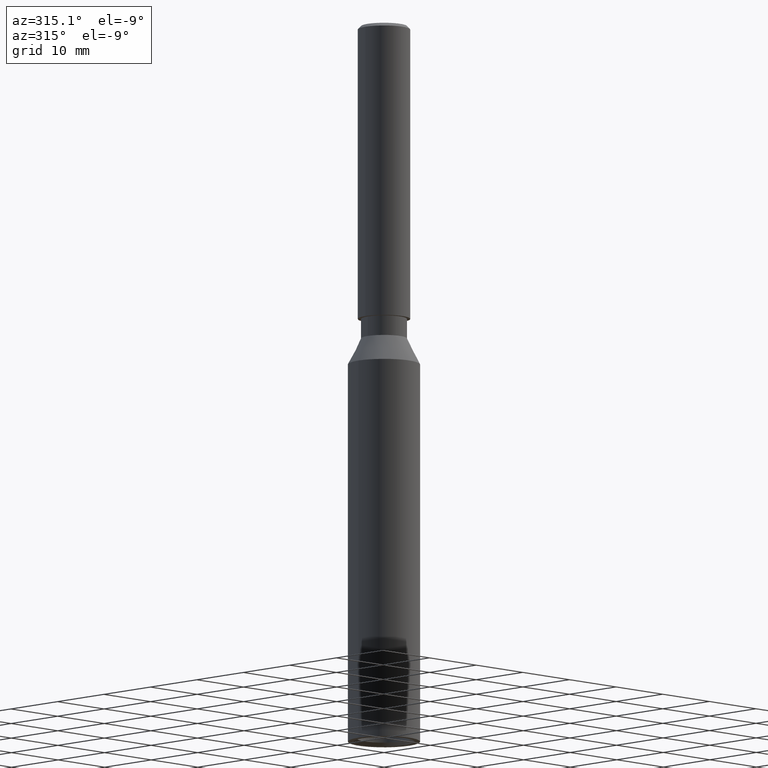
[diagram: clean part render]
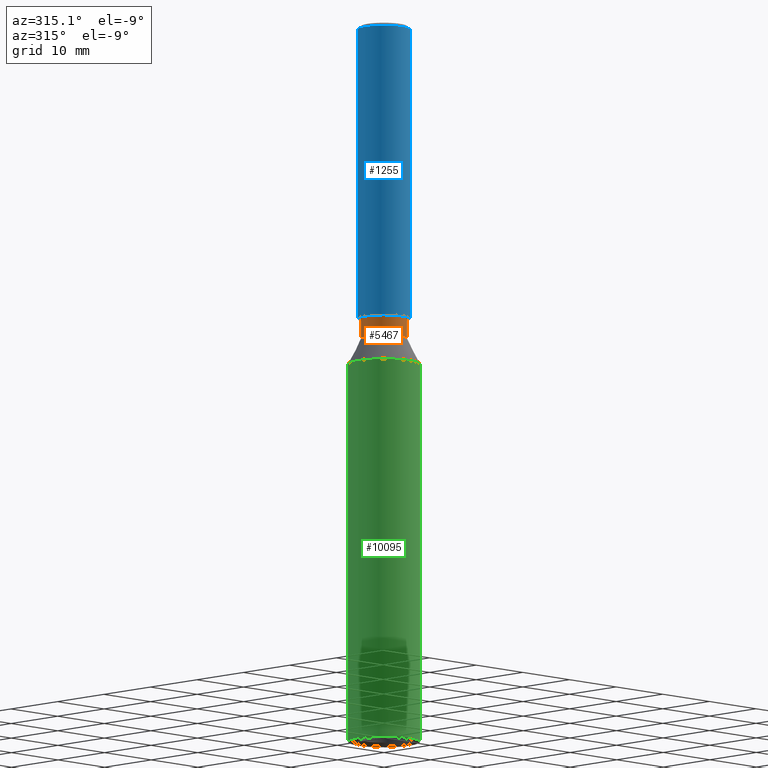
[diagram: same view with three faces highlighted in distinct colors, each labeled with its STEP entity id]
A machine part, auxiliary view with three faces highlighted in distinct colors.
Their STEP definitions:

[orange] entity #5467 — the highlighted cylindrical surface (bore or boss wall) has radius 3.5 mm, axis along (-0, -0, -1).
#126 = VERTEX_POINT ( 'NONE', #6209 ) ;
#197 = CARTESIAN_POINT ( 'NONE',  ( 0.000000000000000000, 0.000000000000000000, 62.00000000000000000 ) ) ;
#303 = DIRECTION ( 'NONE',  ( -0.000000000000000000, -0.000000000000000000, -1.000000000000000000 ) ) ;
#416 = CARTESIAN_POINT ( 'NONE',  ( -3.500000000000007994, 0.000000000000000000, 62.00000000000000000 ) ) ;
#574 = DIRECTION ( 'NONE',  ( -1.000000000000000000, 0.000000000000000000, 0.000000000000000000 ) ) ;
#2164 = DIRECTION ( 'NONE',  ( -1.000000000000000000, 0.000000000000000000, 0.000000000000000000 ) ) ;
#2389 = DIRECTION ( 'NONE',  ( -1.000000000000000000, 0.000000000000000000, 0.000000000000000000 ) ) ;
#2399 = AXIS2_PLACEMENT_3D ( 'NONE', #6563, #5627, #2164 ) ;
#2512 = CARTESIAN_POINT ( 'NONE',  ( 0.000000000000000000, 0.000000000000000000, 0.000000000000000000 ) ) ;
#2907 = DIRECTION ( 'NONE',  ( -0.000000000000000000, -0.000000000000000000, -1.000000000000000000 ) ) ;
#3080 = ORIENTED_EDGE ( 'NONE', *, *, #13600, .F. ) ;
#3837 = EDGE_LOOP ( 'NONE', ( #14034 ) ) ;
#4437 = EDGE_CURVE ( 'NONE', #126, #126, #7585, .T. ) ;
#5400 = AXIS2_PLACEMENT_3D ( 'NONE', #2512, #2907, #574 ) ;
#5467 = ADVANCED_FACE ( 'NONE', ( #10512, #11720 ), #9616, .T. ) ;
#5627 = DIRECTION ( 'NONE',  ( -0.000000000000000000, -0.000000000000000000, -1.000000000000000000 ) ) ;
#6209 = CARTESIAN_POINT ( 'NONE',  ( -3.500000000000008438, 0.000000000000000000, 65.00000000000000000 ) ) ;
#6563 = CARTESIAN_POINT ( 'NONE',  ( 0.000000000000000000, 0.000000000000000000, 65.00000000000000000 ) ) ;
#7528 = CIRCLE ( 'NONE', #11553, 3.500000000000007994 ) ;
#7585 = CIRCLE ( 'NONE', #2399, 3.500000000000008438 ) ;
#7867 = EDGE_LOOP ( 'NONE', ( #3080 ) ) ;
#9616 = CYLINDRICAL_SURFACE ( 'NONE', #5400, 3.500000000000008438 ) ;
#9920 = VERTEX_POINT ( 'NONE', #416 ) ;
#10512 = FACE_OUTER_BOUND ( 'NONE', #3837, .T. ) ;
#11553 = AXIS2_PLACEMENT_3D ( 'NONE', #197, #303, #2389 ) ;
#11720 = FACE_OUTER_BOUND ( 'NONE', #7867, .T. ) ;
#13600 = EDGE_CURVE ( 'NONE', #9920, #9920, #7528, .T. ) ;
#14034 = ORIENTED_EDGE ( 'NONE', *, *, #4437, .T. ) ;

[blue] entity #1255 — the highlighted cylindrical surface (bore or boss wall) has radius 4 mm, axis along (-0, -0, -1).
#1128 = AXIS2_PLACEMENT_3D ( 'NONE', #6274, #8736, #4116 ) ;
#1255 = ADVANCED_FACE ( 'NONE', ( #11286, #1696 ), #13217, .T. ) ;
#1696 = FACE_OUTER_BOUND ( 'NONE', #13963, .T. ) ;
#1731 = VERTEX_POINT ( 'NONE', #7145 ) ;
#1745 = CARTESIAN_POINT ( 'NONE',  ( -4.000000000000000000, 0.000000000000000000, 65.00000000000000000 ) ) ;
#2808 = VERTEX_POINT ( 'NONE', #1745 ) ;
#4116 = DIRECTION ( 'NONE',  ( -1.000000000000000000, 0.000000000000000000, 0.000000000000000000 ) ) ;
#4244 = ORIENTED_EDGE ( 'NONE', *, *, #8086, .F. ) ;
#4718 = CIRCLE ( 'NONE', #1128, 4.000000000000000000 ) ;
#5046 = AXIS2_PLACEMENT_3D ( 'NONE', #8230, #6066, #11595 ) ;
#5356 = DIRECTION ( 'NONE',  ( 1.000000000000000000, 0.000000000000000000, 0.000000000000000000 ) ) ;
#6066 = DIRECTION ( 'NONE',  ( -0.000000000000000000, -0.000000000000000000, -1.000000000000000000 ) ) ;
#6274 = CARTESIAN_POINT ( 'NONE',  ( 0.000000000000000000, 0.000000000000000000, 65.00000000000000000 ) ) ;
#7145 = CARTESIAN_POINT ( 'NONE',  ( 4.000000000000000000, 0.000000000000000000, 109.5000000000000000 ) ) ;
#8086 = EDGE_CURVE ( 'NONE', #2808, #2808, #4718, .T. ) ;
#8230 = CARTESIAN_POINT ( 'NONE',  ( 0.000000000000000000, 0.000000000000000000, 110.0000000000000000 ) ) ;
#8736 = DIRECTION ( 'NONE',  ( -0.000000000000000000, -0.000000000000000000, -1.000000000000000000 ) ) ;
#9695 = DIRECTION ( 'NONE',  ( 0.000000000000000000, 0.000000000000000000, -1.000000000000000000 ) ) ;
#9871 = EDGE_LOOP ( 'NONE', ( #14061 ) ) ;
#10224 = AXIS2_PLACEMENT_3D ( 'NONE', #13036, #9695, #5356 ) ;
#11286 = FACE_OUTER_BOUND ( 'NONE', #9871, .T. ) ;
#11595 = DIRECTION ( 'NONE',  ( -1.000000000000000000, 0.000000000000000000, 0.000000000000000000 ) ) ;
#12942 = EDGE_CURVE ( 'NONE', #1731, #1731, #14301, .T. ) ;
#13036 = CARTESIAN_POINT ( 'NONE',  ( 0.000000000000000000, 0.000000000000000000, 109.5000000000000000 ) ) ;
#13217 = CYLINDRICAL_SURFACE ( 'NONE', #5046, 4.000000000000000000 ) ;
#13963 = EDGE_LOOP ( 'NONE', ( #4244 ) ) ;
#14061 = ORIENTED_EDGE ( 'NONE', *, *, #12942, .T. ) ;
#14301 = CIRCLE ( 'NONE', #10224, 4.000000000000000000 ) ;

[green] entity #10095 — the highlighted cylindrical surface (bore or boss wall) has radius 5.5 mm, axis along (-0, -0, -1).
#801 = EDGE_LOOP ( 'NONE', ( #2637 ) ) ;
#1129 = EDGE_CURVE ( 'NONE', #12379, #12379, #3465, .T. ) ;
#1531 = AXIS2_PLACEMENT_3D ( 'NONE', #4550, #8834, #12334 ) ;
#2637 = ORIENTED_EDGE ( 'NONE', *, *, #1129, .T. ) ;
#3204 = DIRECTION ( 'NONE',  ( -1.000000000000000000, 0.000000000000000000, 0.000000000000000000 ) ) ;
#3465 = CIRCLE ( 'NONE', #4475, 5.500000000000005329 ) ;
#4195 = CARTESIAN_POINT ( 'NONE',  ( 0.000000000000000000, 0.000000000000000000, 64.00000000000000000 ) ) ;
#4475 = AXIS2_PLACEMENT_3D ( 'NONE', #9846, #13320, #3204 ) ;
#4550 = CARTESIAN_POINT ( 'NONE',  ( 0.000000000000000000, 0.000000000000000000, 0.000000000000000000 ) ) ;
#6435 = DIRECTION ( 'NONE',  ( -1.000000000000000000, 0.000000000000000000, 0.000000000000000000 ) ) ;
#6688 = FACE_OUTER_BOUND ( 'NONE', #7232, .T. ) ;
#7232 = EDGE_LOOP ( 'NONE', ( #8227 ) ) ;
#8227 = ORIENTED_EDGE ( 'NONE', *, *, #11999, .T. ) ;
#8395 = VERTEX_POINT ( 'NONE', #11788 ) ;
#8441 = FACE_OUTER_BOUND ( 'NONE', #801, .T. ) ;
#8483 = AXIS2_PLACEMENT_3D ( 'NONE', #4195, #14202, #6435 ) ;
#8834 = DIRECTION ( 'NONE',  ( 0.000000000000000000, 0.000000000000000000, 1.000000000000000000 ) ) ;
#9846 = CARTESIAN_POINT ( 'NONE',  ( 0.000000000000000000, 0.000000000000000000, 58.00000000000000000 ) ) ;
#10095 = ADVANCED_FACE ( 'NONE', ( #6688, #8441 ), #11888, .T. ) ;
#11686 = CARTESIAN_POINT ( 'NONE',  ( -5.500000000000005329, 0.000000000000000000, 58.00000000000000000 ) ) ;
#11788 = CARTESIAN_POINT ( 'NONE',  ( 5.500000000000000000, 0.000000000000000000, 0.000000000000000000 ) ) ;
#11888 = CYLINDRICAL_SURFACE ( 'NONE', #8483, 5.500000000000000000 ) ;
#11999 = EDGE_CURVE ( 'NONE', #8395, #8395, #14306, .T. ) ;
#12334 = DIRECTION ( 'NONE',  ( 1.000000000000000000, 0.000000000000000000, 0.000000000000000000 ) ) ;
#12379 = VERTEX_POINT ( 'NONE', #11686 ) ;
#13320 = DIRECTION ( 'NONE',  ( -0.000000000000000000, -0.000000000000000000, -1.000000000000000000 ) ) ;
#14202 = DIRECTION ( 'NONE',  ( -0.000000000000000000, -0.000000000000000000, -1.000000000000000000 ) ) ;
#14306 = CIRCLE ( 'NONE', #1531, 5.500000000000000000 ) ;